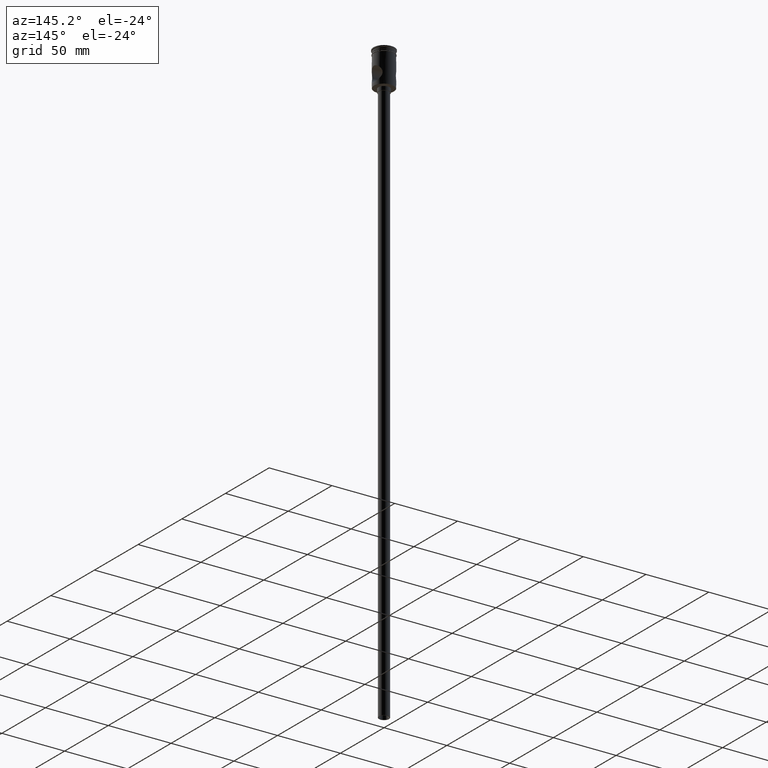
[diagram: clean part render]
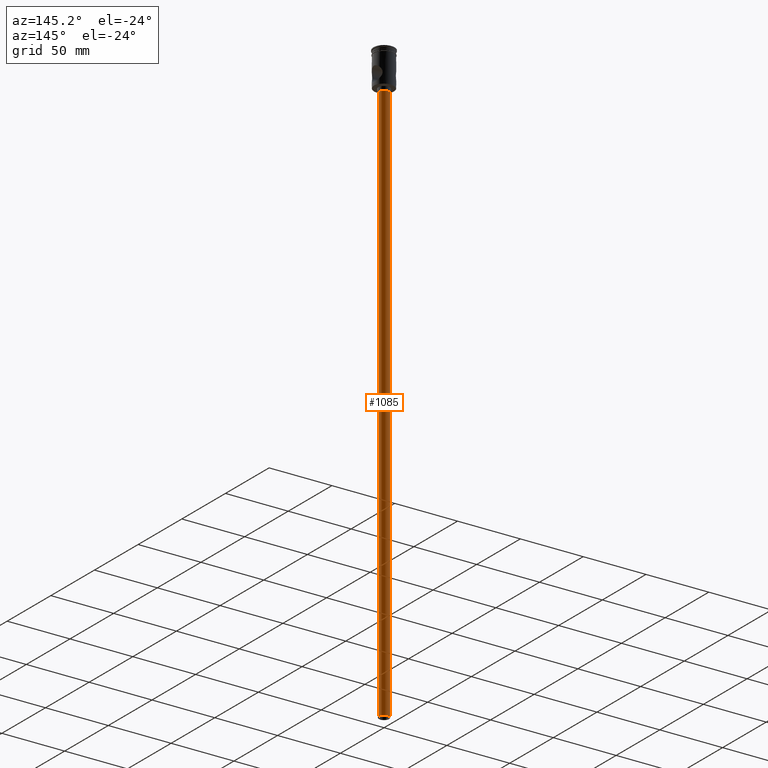
[diagram: same view with one face highlighted and labeled with its STEP entity id]
A machine part, auxiliary view. The second image highlights one B-rep face of the part: STEP entity #1085.
In plain terms, the highlighted cylindrical surface (edge-blend (fillet) strip) has radius 4 mm, axis along (-0, -0, 1).
Its self-contained STEP definition (entity closure, byte-faithful):
#56 = DIRECTION ( 'NONE',  ( 0.000000000000000000, 0.000000000000000000, -1.000000000000000000 ) ) ;
#127 = AXIS2_PLACEMENT_3D ( 'NONE', #1466, #56, #757 ) ;
#169 = VECTOR ( 'NONE', #905, 1000.000000000000000 ) ;
#221 = DIRECTION ( 'NONE',  ( -0.000000000000000000, -0.000000000000000000, 1.000000000000000000 ) ) ;
#255 = EDGE_CURVE ( 'NONE', #269, #1123, #547, .T. ) ;
#269 = VERTEX_POINT ( 'NONE', #693 ) ;
#276 = VERTEX_POINT ( 'NONE', #1036 ) ;
#349 = DIRECTION ( 'NONE',  ( 1.000000000000000000, 0.000000000000000000, 0.000000000000000000 ) ) ;
#375 = ORIENTED_EDGE ( 'NONE', *, *, #1130, .T. ) ;
#475 = LINE ( 'NONE', #593, #658 ) ;
#526 = ORIENTED_EDGE ( 'NONE', *, *, #1316, .F. ) ;
#547 = LINE ( 'NONE', #1460, #169 ) ;
#588 = CIRCLE ( 'NONE', #127, 4.000000000000000000 ) ;
#593 = CARTESIAN_POINT ( 'NONE',  ( -4.000000000000000000, 4.898587196589412829E-16, -477.5000000000000568 ) ) ;
#658 = VECTOR ( 'NONE', #1078, 1000.000000000000000 ) ;
#693 = CARTESIAN_POINT ( 'NONE',  ( 4.000000000000000000, 0.000000000000000000, -477.5000000000000568 ) ) ;
#708 = CARTESIAN_POINT ( 'NONE',  ( 0.000000000000000000, 0.000000000000000000, -30.50000000000000000 ) ) ;
#757 = DIRECTION ( 'NONE',  ( -1.000000000000000000, 0.000000000000000000, 0.000000000000000000 ) ) ;
#785 = ORIENTED_EDGE ( 'NONE', *, *, #255, .F. ) ;
#789 = AXIS2_PLACEMENT_3D ( 'NONE', #708, #1196, #1186 ) ;
#840 = CIRCLE ( 'NONE', #789, 4.000000000000000000 ) ;
#905 = DIRECTION ( 'NONE',  ( -0.000000000000000000, -0.000000000000000000, 1.000000000000000000 ) ) ;
#932 = CARTESIAN_POINT ( 'NONE',  ( 0.000000000000000000, 0.000000000000000000, -477.5000000000000568 ) ) ;
#948 = VERTEX_POINT ( 'NONE', #1223 ) ;
#1024 = ORIENTED_EDGE ( 'NONE', *, *, #1129, .T. ) ;
#1036 = CARTESIAN_POINT ( 'NONE',  ( -4.000000000000000000, 4.898587196589412829E-16, -30.50000000000000000 ) ) ;
#1053 = EDGE_LOOP ( 'NONE', ( #526, #375, #1024, #785 ) ) ;
#1057 = FACE_OUTER_BOUND ( 'NONE', #1053, .T. ) ;
#1078 = DIRECTION ( 'NONE',  ( -0.000000000000000000, -0.000000000000000000, 1.000000000000000000 ) ) ;
#1085 = ADVANCED_FACE ( 'NONE', ( #1057 ), #1283, .T. ) ;
#1123 = VERTEX_POINT ( 'NONE', #1403 ) ;
#1129 = EDGE_CURVE ( 'NONE', #276, #1123, #840, .T. ) ;
#1130 = EDGE_CURVE ( 'NONE', #948, #276, #475, .T. ) ;
#1186 = DIRECTION ( 'NONE',  ( -1.000000000000000000, 0.000000000000000000, 0.000000000000000000 ) ) ;
#1196 = DIRECTION ( 'NONE',  ( 0.000000000000000000, 0.000000000000000000, -1.000000000000000000 ) ) ;
#1223 = CARTESIAN_POINT ( 'NONE',  ( -4.000000000000000000, 4.898587196589412829E-16, -477.5000000000000568 ) ) ;
#1283 = CYLINDRICAL_SURFACE ( 'NONE', #1396, 4.000000000000000000 ) ;
#1316 = EDGE_CURVE ( 'NONE', #948, #269, #588, .T. ) ;
#1396 = AXIS2_PLACEMENT_3D ( 'NONE', #932, #221, #349 ) ;
#1403 = CARTESIAN_POINT ( 'NONE',  ( 4.000000000000000000, 0.000000000000000000, -30.50000000000000000 ) ) ;
#1460 = CARTESIAN_POINT ( 'NONE',  ( 4.000000000000000000, 0.000000000000000000, -477.5000000000000568 ) ) ;
#1466 = CARTESIAN_POINT ( 'NONE',  ( 0.000000000000000000, 0.000000000000000000, -477.5000000000000568 ) ) ;